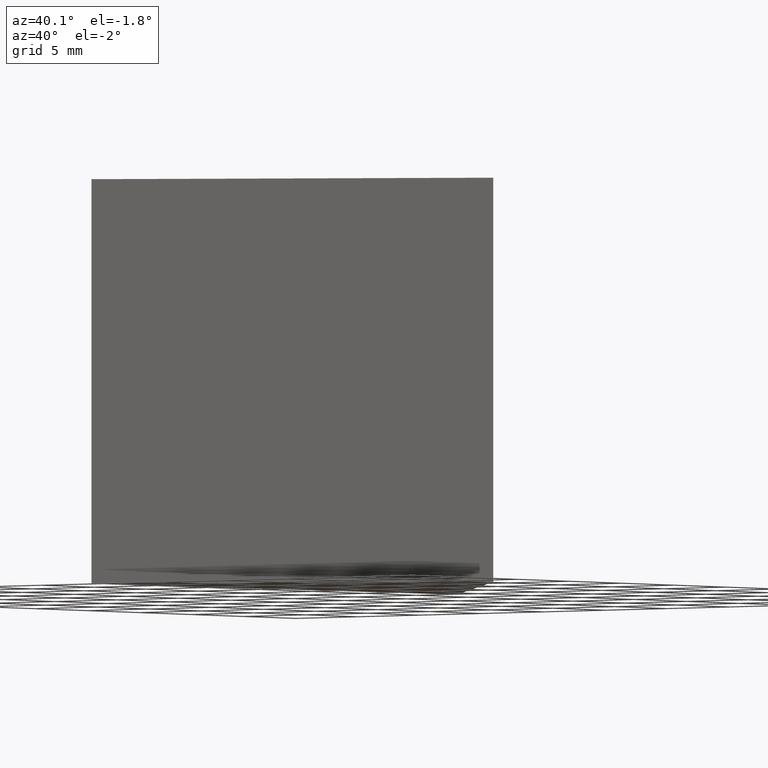
[diagram: clean part render]
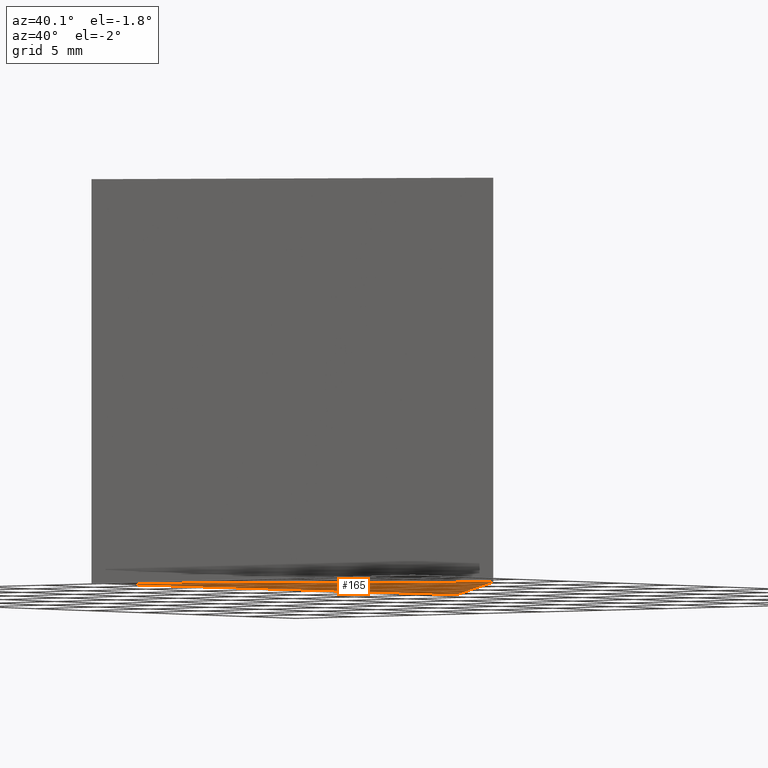
[diagram: same view with one face highlighted and labeled with its STEP entity id]
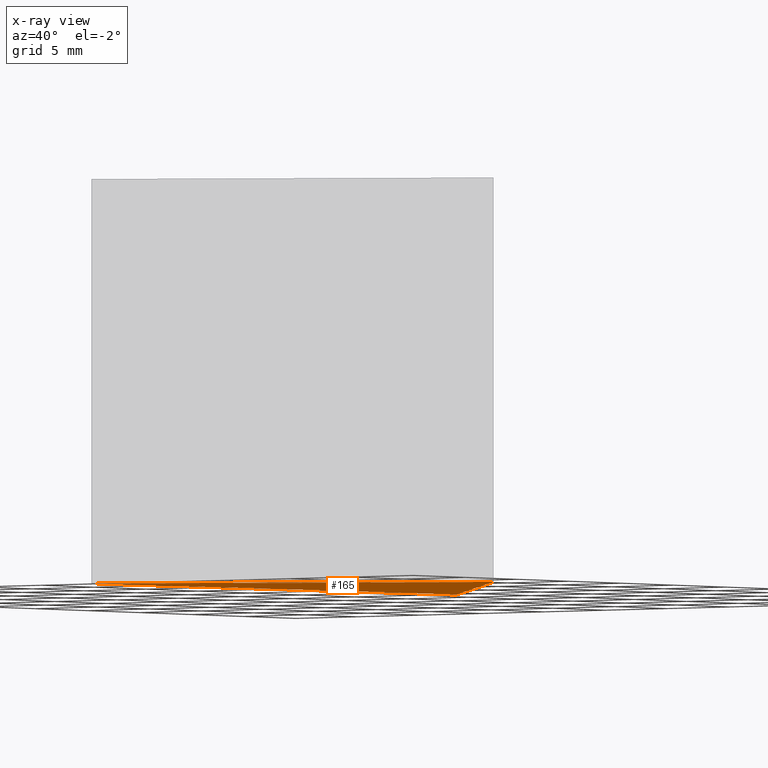
[diagram: x-ray of the same camera — body ghosted, the highlighted face saturated]
A machine part, auxiliary view. The second image highlights one B-rep face of the part: STEP entity #165.
The next image is the same camera in x-ray: the body ghosted, the highlighted face saturated — about 0% of this face is hidden behind the body in this view.
In plain terms, the highlighted planar face has unit normal (0, 0, -1).
Its self-contained STEP definition (entity closure, byte-faithful):
#1 = LINE ( 'NONE', #17, #63 ) ;
#13 = VECTOR ( 'NONE', #78, 1000.000000000000000 ) ;
#17 = CARTESIAN_POINT ( 'NONE',  ( 0.6861709744360347000, 0.8474711050240408800, 0.0000000000000000000 ) ) ;
#33 = VERTEX_POINT ( 'NONE', #144 ) ;
#35 = EDGE_CURVE ( 'NONE', #33, #141, #122, .T. ) ;
#37 = VECTOR ( 'NONE', #64, 999.9999999999998900 ) ;
#47 = ORIENTED_EDGE ( 'NONE', *, *, #35, .F. ) ;
#52 = EDGE_LOOP ( 'NONE', ( #158, #58, #47 ) ) ;
#58 = ORIENTED_EDGE ( 'NONE', *, *, #86, .F. ) ;
#60 = LINE ( 'NONE', #164, #13 ) ;
#63 = VECTOR ( 'NONE', #127, 1000.000000000000100 ) ;
#64 = DIRECTION ( 'NONE',  ( -0.7109728236074630600, 0.7032194850056640000, 0.0000000000000000000 ) ) ;
#78 = DIRECTION ( 'NONE',  ( 0.8342399877260263700, 0.5514015260034012000, -0.0000000000000000000 ) ) ;
#80 = DIRECTION ( 'NONE',  ( 0.0000000000000000000, 0.0000000000000000000, -1.000000000000000000 ) ) ;
#85 = VERTEX_POINT ( 'NONE', #114 ) ;
#86 = EDGE_CURVE ( 'NONE', #141, #85, #1, .T. ) ;
#87 = FACE_OUTER_BOUND ( 'NONE', #52, .T. ) ;
#92 = DIRECTION ( 'NONE',  ( -1.000000000000000000, 0.0000000000000000000, 0.0000000000000000000 ) ) ;
#114 = CARTESIAN_POINT ( 'NONE',  ( 0.6861709744360347000, 0.8474711050240408800, 0.0000000000000000000 ) ) ;
#122 = LINE ( 'NONE', #142, #37 ) ;
#127 = DIRECTION ( 'NONE',  ( -0.09777970958415356500, -0.9952080829623715100, -0.0000000000000000000 ) ) ;
#137 = CARTESIAN_POINT ( 'NONE',  ( 3.767850077400120700, 32.21299638025067200, 0.0000000000000000000 ) ) ;
#141 = VERTEX_POINT ( 'NONE', #137 ) ;
#142 = CARTESIAN_POINT ( 'NONE',  ( 21.54217066758669200, 14.63250925510907100, 0.0000000000000000000 ) ) ;
#144 = CARTESIAN_POINT ( 'NONE',  ( 21.54217066758669200, 14.63250925510907100, 0.0000000000000000000 ) ) ;
#145 = AXIS2_PLACEMENT_3D ( 'NONE', #163, #80, #92 ) ;
#149 = EDGE_CURVE ( 'NONE', #85, #33, #60, .T. ) ;
#154 = PLANE ( 'NONE',  #145 ) ;
#158 = ORIENTED_EDGE ( 'NONE', *, *, #149, .F. ) ;
#163 = CARTESIAN_POINT ( 'NONE',  ( 0.0000000000000000000, 0.0000000000000000000, 0.0000000000000000000 ) ) ;
#164 = CARTESIAN_POINT ( 'NONE',  ( 21.54217066758669200, 14.63250925510907100, 0.0000000000000000000 ) ) ;
#165 = ADVANCED_FACE ( 'NONE', ( #87 ), #154, .T. ) ;